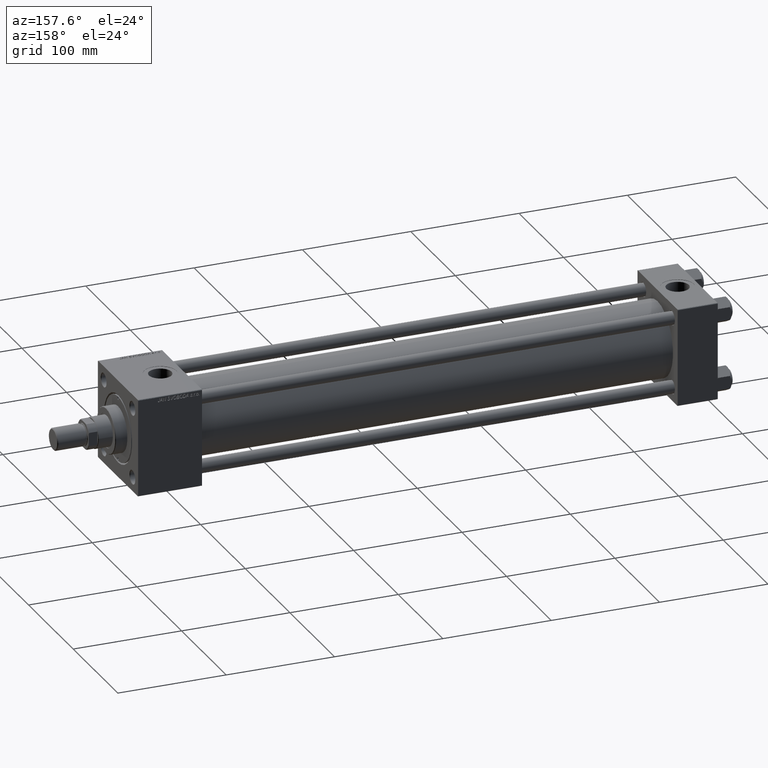
[diagram: clean part render]
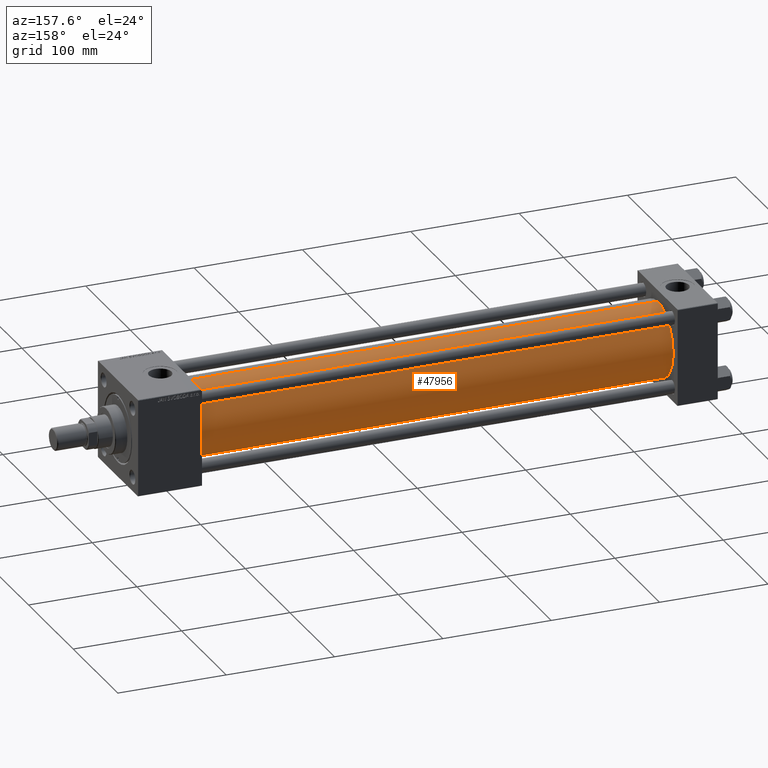
[diagram: same view with one face highlighted and labeled with its STEP entity id]
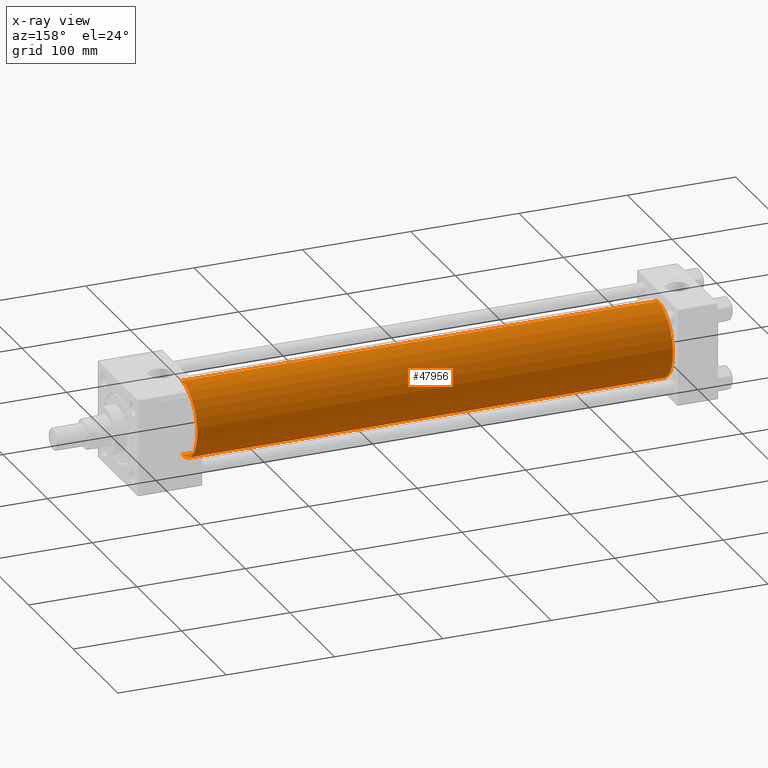
[diagram: x-ray of the same camera — body ghosted, the highlighted face saturated]
A machine part, auxiliary view. The second image highlights one B-rep face of the part: STEP entity #47956.
The next image is the same camera in x-ray: the body ghosted, the highlighted face saturated — about 0% of this face is hidden behind the body in this view.
In plain terms, the highlighted cylindrical surface (partial cylindrical patch) has radius 34.5 mm, axis along (-1, -0, -0).
Its self-contained STEP definition (entity closure, byte-faithful):
#647 = EDGE_CURVE ( 'NONE', #35996, #28574, #3480, .T. ) ;
#2538 = ORIENTED_EDGE ( 'NONE', *, *, #36893, .F. ) ;
#3480 = LINE ( 'NONE', #50523, #38437 ) ;
#7367 = VECTOR ( 'NONE', #21126, 1000.000000000000000 ) ;
#7922 = ORIENTED_EDGE ( 'NONE', *, *, #29321, .T. ) ;
#8674 = AXIS2_PLACEMENT_3D ( 'NONE', #16298, #24771, #9097 ) ;
#8751 = AXIS2_PLACEMENT_3D ( 'NONE', #16749, #36499, #12639 ) ;
#9097 = DIRECTION ( 'NONE',  ( 0.000000000000000000, 0.000000000000000000, 1.000000000000000000 ) ) ;
#9896 = EDGE_LOOP ( 'NONE', ( #2538, #7922, #18421, #31940 ) ) ;
#12639 = DIRECTION ( 'NONE',  ( 0.000000000000000000, 0.000000000000000000, -1.000000000000000000 ) ) ;
#16298 = CARTESIAN_POINT ( 'NONE',  ( 36.99999999999997868, -2.602085213965210642E-15, 0.000000000000000000 ) ) ;
#16749 = CARTESIAN_POINT ( 'NONE',  ( 476.0000000000000000, -2.602085213965210642E-15, 0.000000000000000000 ) ) ;
#18159 = DIRECTION ( 'NONE',  ( -1.000000000000000000, -0.000000000000000000, -0.000000000000000000 ) ) ;
#18421 = ORIENTED_EDGE ( 'NONE', *, *, #35554, .T. ) ;
#21074 = CIRCLE ( 'NONE', #8751, 34.50000000000000000 ) ;
#21126 = DIRECTION ( 'NONE',  ( -1.000000000000000000, -0.000000000000000000, -0.000000000000000000 ) ) ;
#24477 = VERTEX_POINT ( 'NONE', #39477 ) ;
#24727 = LINE ( 'NONE', #34127, #7367 ) ;
#24771 = DIRECTION ( 'NONE',  ( 1.000000000000000000, -0.000000000000000000, 0.000000000000000000 ) ) ;
#25741 = DIRECTION ( 'NONE',  ( 0.000000000000000000, 0.000000000000000000, 1.000000000000000000 ) ) ;
#28238 = CARTESIAN_POINT ( 'NONE',  ( 476.0000000000000000, 1.622946243093158675E-15, -34.50000000000000000 ) ) ;
#28574 = VERTEX_POINT ( 'NONE', #49833 ) ;
#29321 = EDGE_CURVE ( 'NONE', #44042, #24477, #24727, .T. ) ;
#29851 = CARTESIAN_POINT ( 'NONE',  ( 476.0000000000000000, -2.602085213965210642E-15, 0.000000000000000000 ) ) ;
#31940 = ORIENTED_EDGE ( 'NONE', *, *, #647, .F. ) ;
#33609 = AXIS2_PLACEMENT_3D ( 'NONE', #29851, #49641, #25741 ) ;
#34127 = CARTESIAN_POINT ( 'NONE',  ( 476.0000000000000000, 1.622946243093158675E-15, -34.50000000000000000 ) ) ;
#35554 = EDGE_CURVE ( 'NONE', #24477, #28574, #48900, .T. ) ;
#35996 = VERTEX_POINT ( 'NONE', #37784 ) ;
#36499 = DIRECTION ( 'NONE',  ( 1.000000000000000000, 0.000000000000000000, 0.000000000000000000 ) ) ;
#36893 = EDGE_CURVE ( 'NONE', #44042, #35996, #21074, .T. ) ;
#37784 = CARTESIAN_POINT ( 'NONE',  ( 476.0000000000000000, -2.602085213965210642E-15, 34.50000000000000000 ) ) ;
#38437 = VECTOR ( 'NONE', #18159, 1000.000000000000000 ) ;
#39477 = CARTESIAN_POINT ( 'NONE',  ( 36.99999999999997868, 1.622946243093158675E-15, -34.50000000000000000 ) ) ;
#44042 = VERTEX_POINT ( 'NONE', #28238 ) ;
#45269 = CYLINDRICAL_SURFACE ( 'NONE', #33609, 34.50000000000000000 ) ;
#47956 = ADVANCED_FACE ( 'NONE', ( #49144 ), #45269, .T. ) ;
#48900 = CIRCLE ( 'NONE', #8674, 34.50000000000000000 ) ;
#49144 = FACE_OUTER_BOUND ( 'NONE', #9896, .T. ) ;
#49641 = DIRECTION ( 'NONE',  ( -1.000000000000000000, -0.000000000000000000, -0.000000000000000000 ) ) ;
#49833 = CARTESIAN_POINT ( 'NONE',  ( 36.99999999999997868, -2.602085213965210642E-15, 34.50000000000000000 ) ) ;
#50523 = CARTESIAN_POINT ( 'NONE',  ( 476.0000000000000000, -2.602085213965210642E-15, 34.50000000000000000 ) ) ;